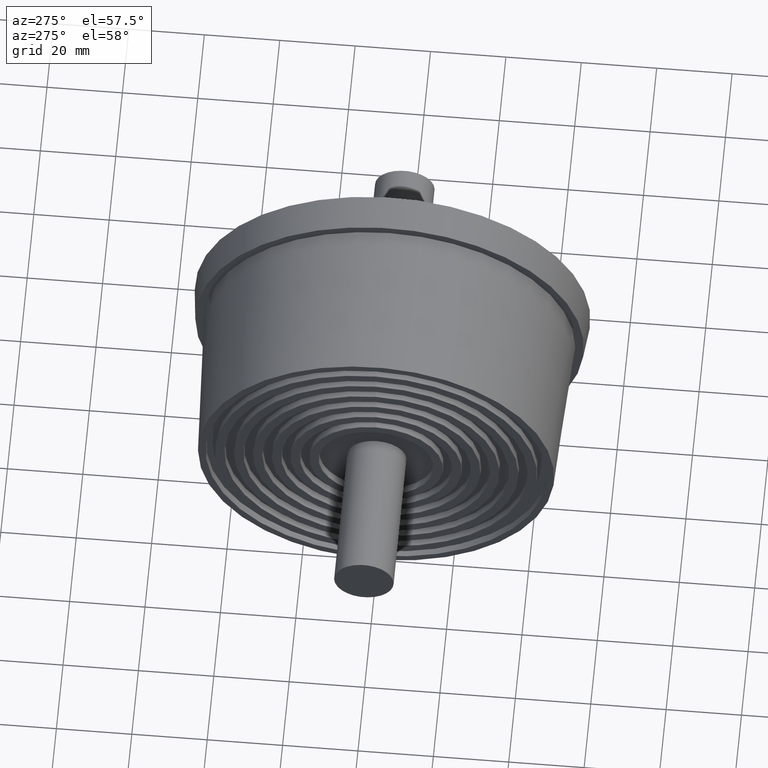
[diagram: clean part render]
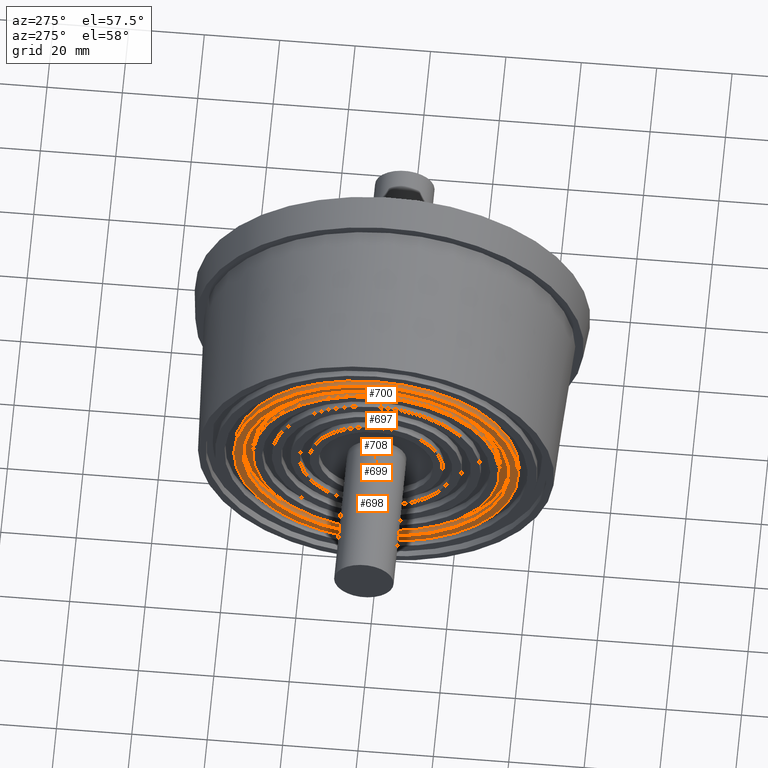
[diagram: same view with one multi-face feature highlighted, each face labeled with its STEP entity id]
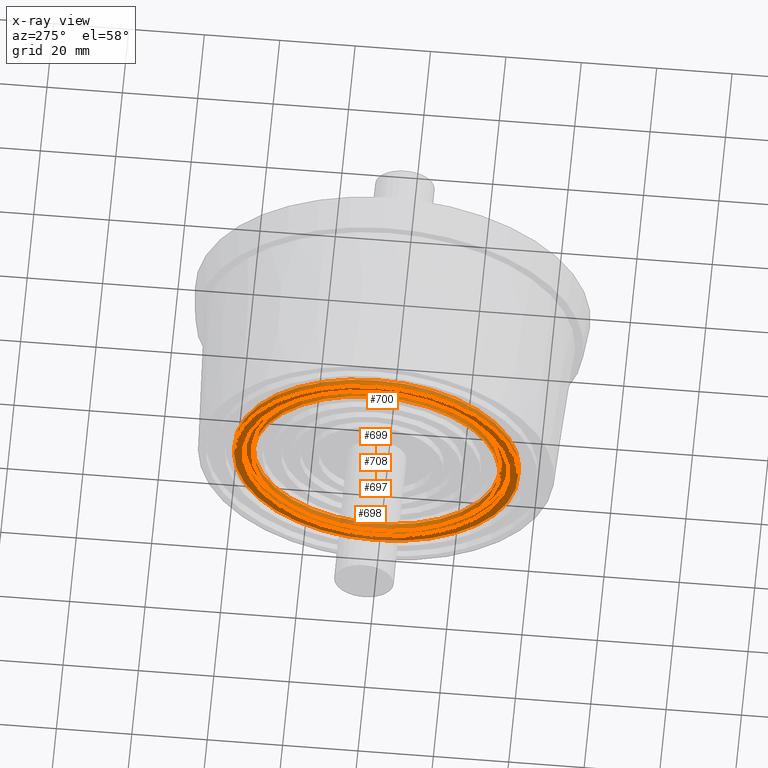
[diagram: x-ray of the same camera — body ghosted, the whole feature saturated]
A machine part, auxiliary view. The highlighted faces form ONE feature: a stepped (counterbored) hole: 3 coaxial cylindrical walls of radii 32.75 -> 35.25 -> 37.75 mm joined by 2 annular planar shoulder face(s). The faces share edges in the B-rep.
The next image is the same camera in x-ray: the body ghosted and the whole hole feature saturated, so the bore chain is visible through the body.
Their STEP definitions:
[1] entity #700 (Cylinder):
#94=FACE_BOUND('',#267,.T.);
#157=FACE_OUTER_BOUND('',#266,.T.);
#266=EDGE_LOOP('',(#586));
#267=EDGE_LOOP('',(#587));
#357=CIRCLE('',#819,37.75);
#358=CIRCLE('',#820,37.75);
#421=VERTEX_POINT('',#1260);
#422=VERTEX_POINT('',#1262);
#485=EDGE_CURVE('',#421,#421,#357,.T.);
#486=EDGE_CURVE('',#422,#422,#358,.T.);
#586=ORIENTED_EDGE('',*,*,#485,.T.);
#587=ORIENTED_EDGE('',*,*,#486,.F.);
#650=CYLINDRICAL_SURFACE('',#818,37.75);
#700=ADVANCED_FACE('',(#157,#94),#650,.T.);
#818=AXIS2_PLACEMENT_3D('',#1259,#1044,#1045);
#819=AXIS2_PLACEMENT_3D('',#1261,#1046,#1047);
#820=AXIS2_PLACEMENT_3D('',#1263,#1048,#1049);
#1044=DIRECTION('center_axis',(1.,0.,0.));
#1045=DIRECTION('ref_axis',(0.,0.,-1.));
#1046=DIRECTION('center_axis',(-1.,-2.40506373542991E-32,0.));
#1047=DIRECTION('ref_axis',(0.,0.,-1.));
#1048=DIRECTION('center_axis',(-1.,-2.40506373542991E-32,0.));
#1049=DIRECTION('ref_axis',(0.,0.,-1.));
#1259=CARTESIAN_POINT('Origin',(-25.,-3.25759170441364E-46,0.));
#1260=CARTESIAN_POINT('',(-23.,4.62304166678126E-15,37.75));
#1261=CARTESIAN_POINT('Origin',(-23.,-3.25759170441364E-46,0.));
#1262=CARTESIAN_POINT('',(-25.,4.62304166678126E-15,37.75));
#1263=CARTESIAN_POINT('Origin',(-25.,-3.25759170441364E-46,0.));
[2] entity #698 (Cylinder):
#92=FACE_BOUND('',#263,.T.);
#155=FACE_OUTER_BOUND('',#262,.T.);
#262=EDGE_LOOP('',(#582));
#263=EDGE_LOOP('',(#583));
#355=CIRCLE('',#815,35.25);
#356=CIRCLE('',#816,35.25);
#419=VERTEX_POINT('',#1254);
#420=VERTEX_POINT('',#1256);
#483=EDGE_CURVE('',#419,#419,#355,.T.);
#484=EDGE_CURVE('',#420,#420,#356,.T.);
#582=ORIENTED_EDGE('',*,*,#483,.T.);
#583=ORIENTED_EDGE('',*,*,#484,.F.);
#649=CYLINDRICAL_SURFACE('',#814,35.25);
#698=ADVANCED_FACE('',(#155,#92),#649,.F.);
#814=AXIS2_PLACEMENT_3D('',#1253,#1036,#1037);
#815=AXIS2_PLACEMENT_3D('',#1255,#1038,#1039);
#816=AXIS2_PLACEMENT_3D('',#1257,#1040,#1041);
#1036=DIRECTION('center_axis',(1.,0.,0.));
#1037=DIRECTION('ref_axis',(0.,0.,-1.));
#1038=DIRECTION('center_axis',(1.,2.40506373542991E-32,0.));
#1039=DIRECTION('ref_axis',(0.,0.,-1.));
#1040=DIRECTION('center_axis',(1.,2.40506373542991E-32,0.));
#1041=DIRECTION('ref_axis',(0.,0.,-1.));
#1253=CARTESIAN_POINT('Origin',(-25.,-3.25759170441364E-46,0.));
#1254=CARTESIAN_POINT('',(-23.,4.31687996699442E-15,35.25));
#1255=CARTESIAN_POINT('Origin',(-23.,-3.25759170441364E-46,0.));
#1256=CARTESIAN_POINT('',(-25.,4.31687996699442E-15,35.25));
#1257=CARTESIAN_POINT('Origin',(-25.,-3.25759170441364E-46,0.));
[3] entity #697 (Cylinder):
#91=FACE_BOUND('',#261,.T.);
#154=FACE_OUTER_BOUND('',#260,.T.);
#260=EDGE_LOOP('',(#580));
#261=EDGE_LOOP('',(#581));
#353=CIRCLE('',#812,32.75);
#354=CIRCLE('',#813,32.75);
#417=VERTEX_POINT('',#1249);
#418=VERTEX_POINT('',#1251);
#481=EDGE_CURVE('',#417,#417,#353,.T.);
#482=EDGE_CURVE('',#418,#418,#354,.T.);
#580=ORIENTED_EDGE('',*,*,#481,.T.);
#581=ORIENTED_EDGE('',*,*,#482,.F.);
#648=CYLINDRICAL_SURFACE('',#811,32.75);
#697=ADVANCED_FACE('',(#154,#91),#648,.T.);
#811=AXIS2_PLACEMENT_3D('',#1248,#1030,#1031);
#812=AXIS2_PLACEMENT_3D('',#1250,#1032,#1033);
#813=AXIS2_PLACEMENT_3D('',#1252,#1034,#1035);
#1030=DIRECTION('center_axis',(1.,0.,0.));
#1031=DIRECTION('ref_axis',(0.,0.,-1.));
#1032=DIRECTION('center_axis',(-1.,-2.40506373542991E-32,0.));
#1033=DIRECTION('ref_axis',(0.,0.,-1.));
#1034=DIRECTION('center_axis',(-1.,-2.40506373542991E-32,0.));
#1035=DIRECTION('ref_axis',(0.,0.,-1.));
#1248=CARTESIAN_POINT('Origin',(-25.,-3.25759170441364E-46,0.));
#1249=CARTESIAN_POINT('',(-23.,4.01071826720758E-15,32.75));
#1250=CARTESIAN_POINT('Origin',(-23.,-3.25759170441364E-46,0.));
#1251=CARTESIAN_POINT('',(-25.,4.01071826720758E-15,32.75));
#1252=CARTESIAN_POINT('Origin',(-25.,-3.25759170441364E-46,0.));
[4] entity #708 (Plane):
#41=PLANE('',#835);
#102=FACE_BOUND('',#283,.T.);
#165=FACE_OUTER_BOUND('',#282,.T.);
#282=EDGE_LOOP('',(#602));
#283=EDGE_LOOP('',(#603));
#356=CIRCLE('',#816,35.25);
#358=CIRCLE('',#820,37.75);
#420=VERTEX_POINT('',#1256);
#422=VERTEX_POINT('',#1262);
#484=EDGE_CURVE('',#420,#420,#356,.T.);
#486=EDGE_CURVE('',#422,#422,#358,.T.);
#602=ORIENTED_EDGE('',*,*,#486,.T.);
#603=ORIENTED_EDGE('',*,*,#484,.T.);
#708=ADVANCED_FACE('',(#165,#102),#41,.T.);
#816=AXIS2_PLACEMENT_3D('',#1257,#1040,#1041);
#820=AXIS2_PLACEMENT_3D('',#1263,#1048,#1049);
#835=AXIS2_PLACEMENT_3D('',#1285,#1078,#1079);
#1040=DIRECTION('center_axis',(1.,2.40506373542991E-32,0.));
#1041=DIRECTION('ref_axis',(0.,0.,-1.));
#1048=DIRECTION('center_axis',(-1.,-2.40506373542991E-32,0.));
#1049=DIRECTION('ref_axis',(0.,0.,-1.));
#1078=DIRECTION('center_axis',(-1.,-2.40506373542991E-32,0.));
#1079=DIRECTION('ref_axis',(0.,0.,1.));
#1256=CARTESIAN_POINT('',(-25.,4.31687996699442E-15,35.25));
#1257=CARTESIAN_POINT('Origin',(-25.,-3.25759170441364E-46,0.));
#1262=CARTESIAN_POINT('',(-25.,4.62304166678126E-15,37.75));
#1263=CARTESIAN_POINT('Origin',(-25.,-3.25759170441364E-46,0.));
#1285=CARTESIAN_POINT('Origin',(-25.,47.25,0.));
[5] entity #699 (Plane):
#36=PLANE('',#817);
#93=FACE_BOUND('',#265,.T.);
#156=FACE_OUTER_BOUND('',#264,.T.);
#264=EDGE_LOOP('',(#584));
#265=EDGE_LOOP('',(#585));
#353=CIRCLE('',#812,32.75);
#355=CIRCLE('',#815,35.25);
#417=VERTEX_POINT('',#1249);
#419=VERTEX_POINT('',#1254);
#481=EDGE_CURVE('',#417,#417,#353,.T.);
#483=EDGE_CURVE('',#419,#419,#355,.T.);
#584=ORIENTED_EDGE('',*,*,#483,.F.);
#585=ORIENTED_EDGE('',*,*,#481,.F.);
#699=ADVANCED_FACE('',(#156,#93),#36,.T.);
#812=AXIS2_PLACEMENT_3D('',#1250,#1032,#1033);
#815=AXIS2_PLACEMENT_3D('',#1255,#1038,#1039);
#817=AXIS2_PLACEMENT_3D('',#1258,#1042,#1043);
#1032=DIRECTION('center_axis',(-1.,-2.40506373542991E-32,0.));
#1033=DIRECTION('ref_axis',(0.,0.,-1.));
#1038=DIRECTION('center_axis',(1.,2.40506373542991E-32,0.));
#1039=DIRECTION('ref_axis',(0.,0.,-1.));
#1042=DIRECTION('center_axis',(-1.,-2.40506373542991E-32,0.));
#1043=DIRECTION('ref_axis',(0.,0.,1.));
#1249=CARTESIAN_POINT('',(-23.,4.01071826720758E-15,32.75));
#1250=CARTESIAN_POINT('Origin',(-23.,-3.25759170441364E-46,0.));
#1254=CARTESIAN_POINT('',(-23.,4.31687996699442E-15,35.25));
#1255=CARTESIAN_POINT('Origin',(-23.,-3.25759170441364E-46,0.));
#1258=CARTESIAN_POINT('Origin',(-23.,8.39885030449291E-16,-2.03951005814812E-15));